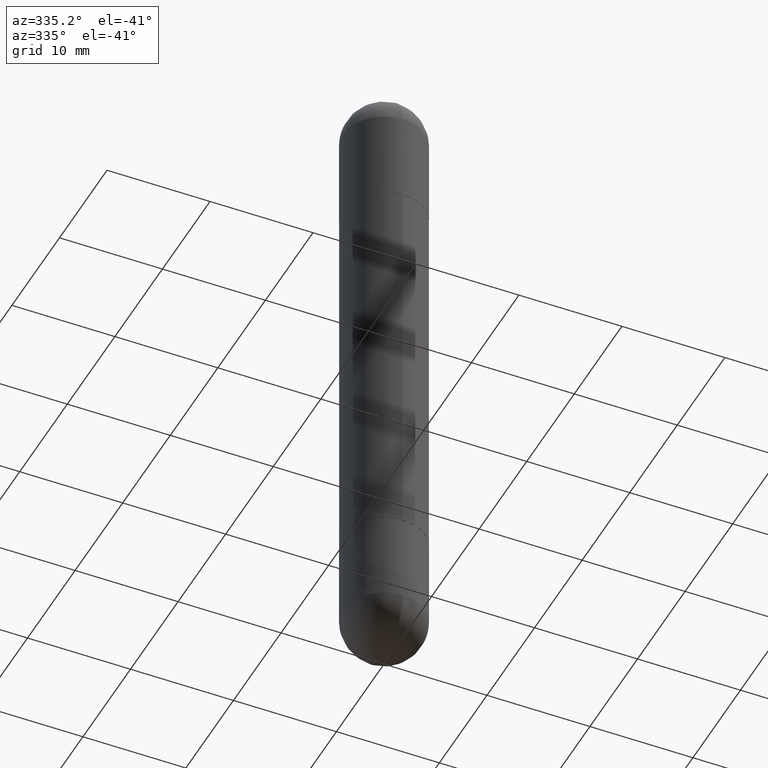
[diagram: clean part render]
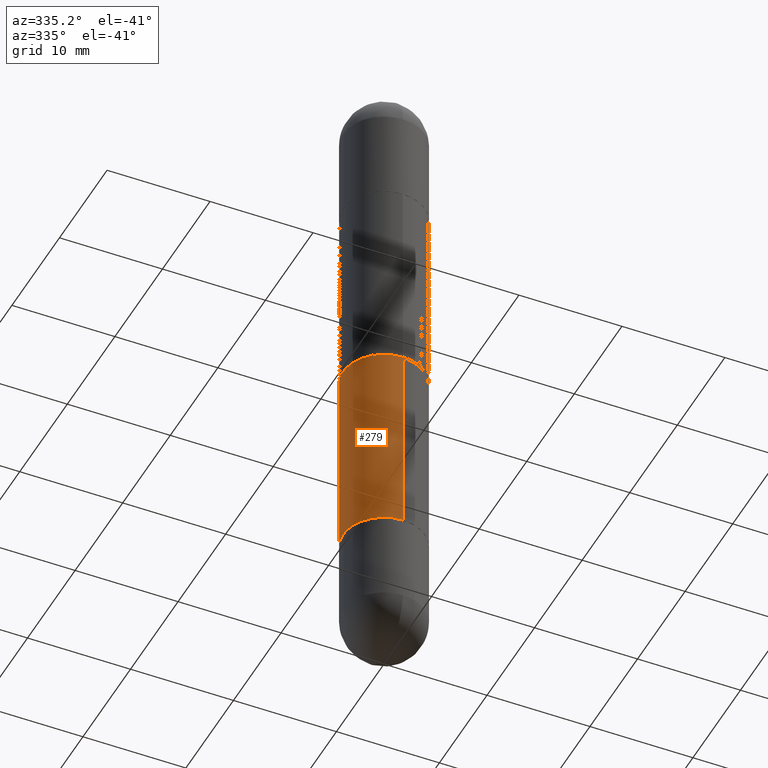
[diagram: same view with one face highlighted and labeled with its STEP entity id]
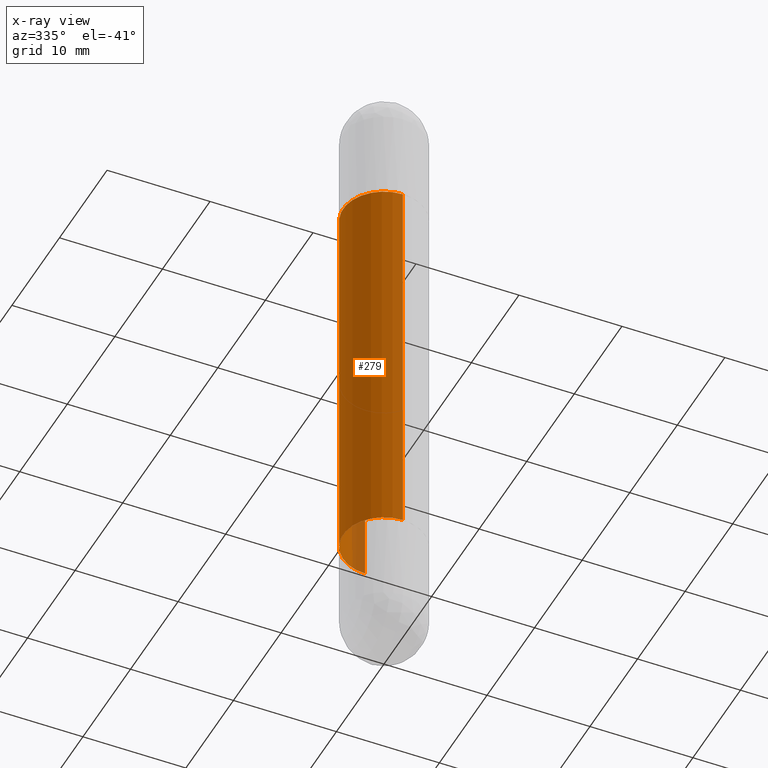
[diagram: x-ray of the same camera — body ghosted, the highlighted face saturated]
A machine part, auxiliary view. The second image highlights one B-rep face of the part: STEP entity #279.
The next image is the same camera in x-ray: the body ghosted, the highlighted face saturated — about 3% of this face is hidden behind the body in this view.
In plain terms, the highlighted cylindrical surface (partial cylindrical patch) has radius 3.9688 mm, axis along (-0, 0, -1).
Its self-contained STEP definition (entity closure, byte-faithful):
#8 = EDGE_CURVE ( 'NONE', #523, #546, #83, .T. ) ;
#35 = DIRECTION ( 'NONE',  ( -2.445190853469272491E-29, 3.491879382952348982E-15, -1.000000000000000000 ) ) ;
#41 = DIRECTION ( 'NONE',  ( -2.445190853469272491E-29, 3.491879382952348982E-15, -1.000000000000000000 ) ) ;
#46 = EDGE_LOOP ( 'NONE', ( #675, #300, #380, #811 ) ) ;
#52 = CARTESIAN_POINT ( 'NONE',  ( -1.091087918388432039E-15, -0.1562500000000072720, -0.5010000000000013332 ) ) ;
#53 = FACE_OUTER_BOUND ( 'NONE', #46, .T. ) ;
#59 = VERTEX_POINT ( 'NONE', #776 ) ;
#79 = CIRCLE ( 'NONE', #297, 0.1562500000000002776 ) ;
#83 = LINE ( 'NONE', #334, #411 ) ;
#168 = DIRECTION ( 'NONE',  ( -6.982962677686265922E-15, -1.000000000000000000, -3.496765431890253764E-15 ) ) ;
#207 = EDGE_CURVE ( 'NONE', #804, #59, #677, .T. ) ;
#224 = CARTESIAN_POINT ( 'NONE',  ( 1.071952812151833755E-15, 0.1562499999999933109, -1.999000000000000554 ) ) ;
#231 = CARTESIAN_POINT ( 'NONE',  ( 0.000000000000000000, 0.000000000000000000, -2.500000000000000444 ) ) ;
#254 = DIRECTION ( 'NONE',  ( -6.982962677686265922E-15, -1.000000000000000000, -3.496765431890250609E-15 ) ) ;
#279 = ADVANCED_FACE ( 'NONE', ( #53 ), #540, .T. ) ;
#297 = AXIS2_PLACEMENT_3D ( 'NONE', #396, #400, #718 ) ;
#300 = ORIENTED_EDGE ( 'NONE', *, *, #8, .T. ) ;
#334 = CARTESIAN_POINT ( 'NONE',  ( 1.071952812151802595E-15, 0.1562500000000001388, -2.500000000000000000 ) ) ;
#351 = EDGE_CURVE ( 'NONE', #523, #804, #670, .T. ) ;
#380 = ORIENTED_EDGE ( 'NONE', *, *, #507, .T. ) ;
#396 = CARTESIAN_POINT ( 'NONE',  ( 4.887936516085075525E-29, -6.980266886521744924E-15, -1.998999999999999888 ) ) ;
#400 = DIRECTION ( 'NONE',  ( -2.445190853469272491E-29, 3.491879382952348982E-15, 1.000000000000000000 ) ) ;
#411 = VECTOR ( 'NONE', #35, 39.37007874015748143 ) ;
#462 = CARTESIAN_POINT ( 'NONE',  ( 1.071952812151852491E-15, 0.1562499999999932832, -0.5010000000000002229 ) ) ;
#492 = CARTESIAN_POINT ( 'NONE',  ( 4.887936516085075525E-29, -6.980266886521744924E-15, -0.5010000000000007780 ) ) ;
#507 = EDGE_CURVE ( 'NONE', #546, #59, #79, .T. ) ;
#510 = AXIS2_PLACEMENT_3D ( 'NONE', #231, #545, #168 ) ;
#523 = VERTEX_POINT ( 'NONE', #462 ) ;
#525 = AXIS2_PLACEMENT_3D ( 'NONE', #492, #638, #254 ) ;
#540 = CYLINDRICAL_SURFACE ( 'NONE', #510, 0.1562500000000001388 ) ;
#543 = CARTESIAN_POINT ( 'NONE',  ( -1.091087918388479962E-15, -0.1562500000000001388, -2.500000000000001332 ) ) ;
#545 = DIRECTION ( 'NONE',  ( -2.445190853469272491E-29, 3.491879382952348982E-15, -1.000000000000000000 ) ) ;
#546 = VERTEX_POINT ( 'NONE', #224 ) ;
#638 = DIRECTION ( 'NONE',  ( 2.445190853469272491E-29, -3.491879382952348982E-15, 1.000000000000000000 ) ) ;
#670 = CIRCLE ( 'NONE', #525, 0.1562500000000002776 ) ;
#675 = ORIENTED_EDGE ( 'NONE', *, *, #351, .F. ) ;
#677 = LINE ( 'NONE', #543, #793 ) ;
#718 = DIRECTION ( 'NONE',  ( -6.982962677686265922E-15, -1.000000000000000000, 3.496765431890250609E-15 ) ) ;
#776 = CARTESIAN_POINT ( 'NONE',  ( -1.091087918388432039E-15, -0.1562500000000072442, -1.998999999999999444 ) ) ;
#793 = VECTOR ( 'NONE', #41, 39.37007874015748143 ) ;
#804 = VERTEX_POINT ( 'NONE', #52 ) ;
#811 = ORIENTED_EDGE ( 'NONE', *, *, #207, .F. ) ;